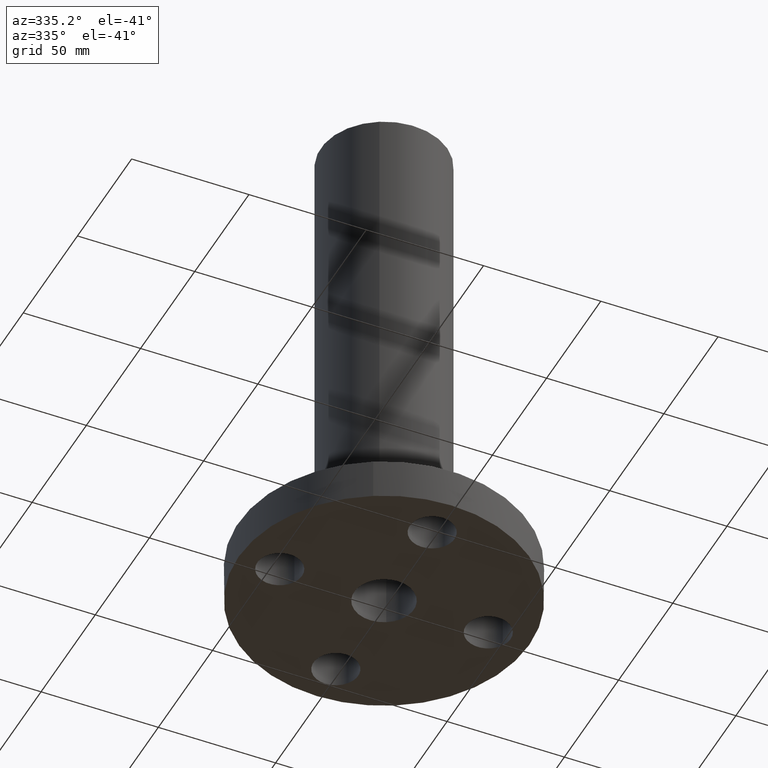
[diagram: clean part render]
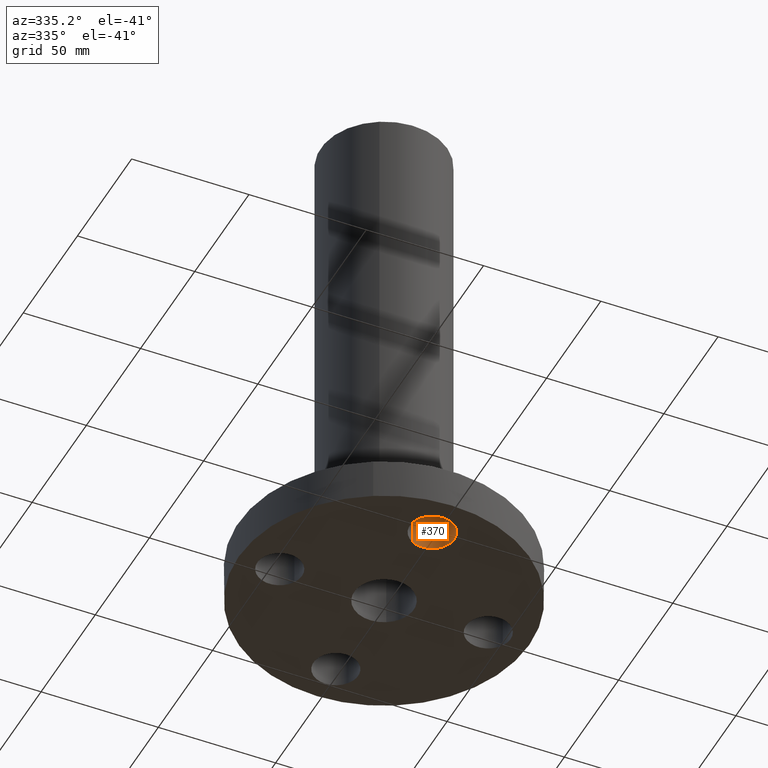
[diagram: same view with one face highlighted and labeled with its STEP entity id]
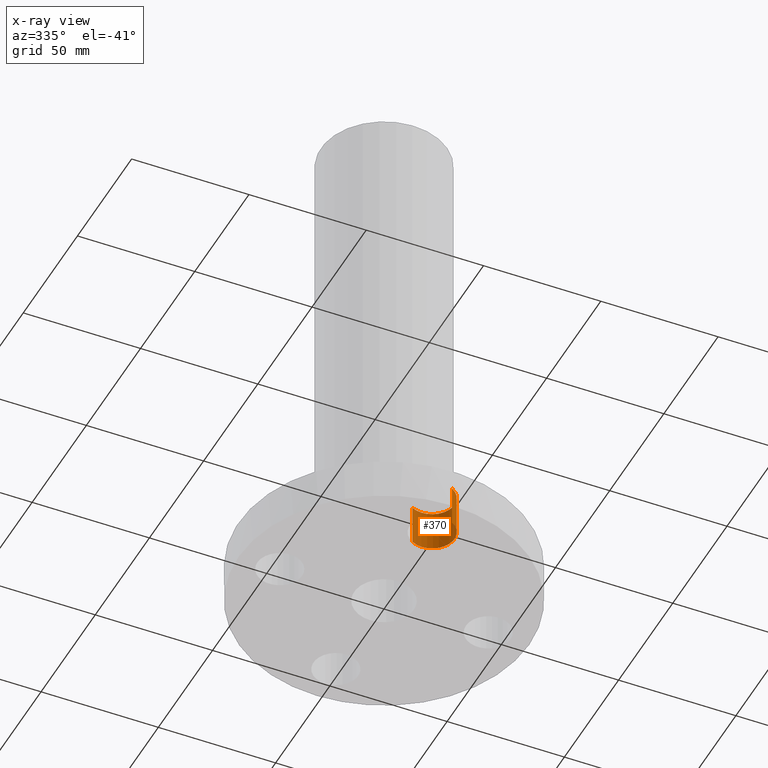
[diagram: x-ray of the same camera — body ghosted, the highlighted face saturated]
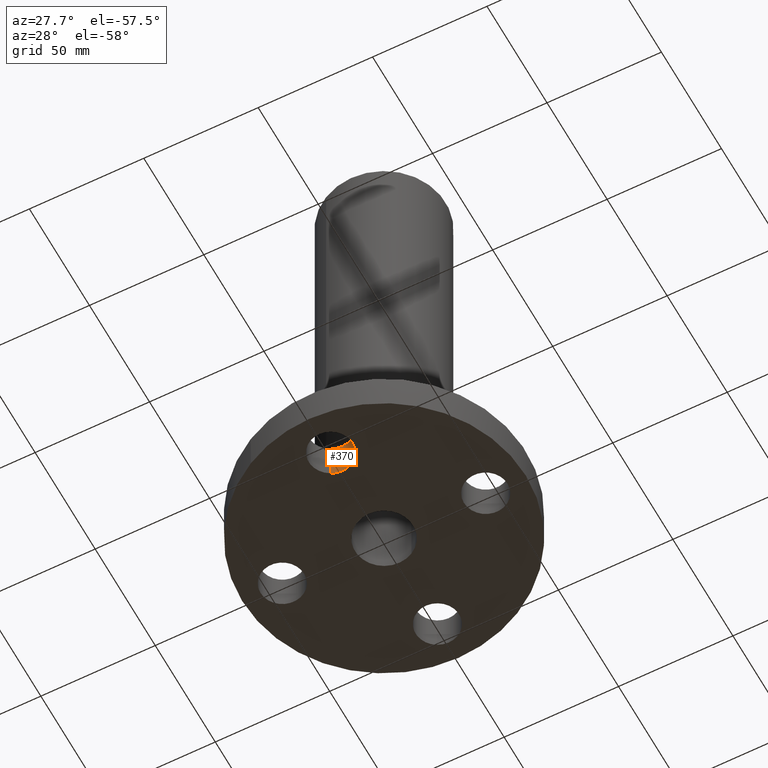
[diagram: same view with one face highlighted and labeled with its STEP entity id]
A machine part, auxiliary view. The second image highlights one B-rep face of the part: STEP entity #370.
The next image is the same camera in x-ray: the body ghosted, the highlighted face saturated — about 0% of this face is hidden behind the body in this view.
A second angle (auxiliary view) of the same face is appended — the face is thin or edge-on in the first view.
In plain terms, the highlighted cylindrical surface (edge-blend (fillet) strip) has radius 9.525 mm, axis along (-0, 0, 1).
Its self-contained STEP definition (entity closure, byte-faithful):
#139=AXIS2_PLACEMENT_3D('Circle Axis2P3D',#137,#138,$) ;
#331=AXIS2_PLACEMENT_3D('Cylinder Axis2P3D',#328,#329,#330) ;
#361=AXIS2_PLACEMENT_3D('Circle Axis2P3D',#359,#360,$) ;
#137=CARTESIAN_POINT('Axis2P3D Location',(2.79741234551E-016,-1.75000000001,0.690000000003)) ;
#141=CARTESIAN_POINT('Vertex',(-0.179784576977,-1.4209065393,0.690000000003)) ;
#143=CARTESIAN_POINT('Vertex',(0.179784576977,-2.07909346072,0.690000000003)) ;
#328=CARTESIAN_POINT('Axis2P3D Location',(1.07156594926E-016,-1.75000000001,0.00393700787402)) ;
#333=CARTESIAN_POINT('Line Origine',(-0.179784576977,-1.4209065393,0.345000000001)) ;
#337=CARTESIAN_POINT('Vertex',(-0.179784576977,-1.4209065393,2.2401153548E-016)) ;
#340=CARTESIAN_POINT('Line Origine',(0.179784576977,-2.07909346072,0.345000000001)) ;
#344=CARTESIAN_POINT('Vertex',(0.179784576977,-2.07909346072,2.2401153548E-016)) ;
#359=CARTESIAN_POINT('Axis2P3D Location',(1.07156594926E-016,-1.75000000001,0.)) ;
#138=DIRECTION('Axis2P3D Direction',(0.,0.,-0.0393700787402)) ;
#329=DIRECTION('Axis2P3D Direction',(-0.,0.,0.0393700787402)) ;
#330=DIRECTION('Axis2P3D XDirection',(0.0188750212049,-0.0345504945626,0.)) ;
#334=DIRECTION('Vector Direction',(0.,0.,0.0393700787402)) ;
#341=DIRECTION('Vector Direction',(0.,0.,0.0393700787402)) ;
#360=DIRECTION('Axis2P3D Direction',(-0.,0.,0.0393700787402)) ;
#335=VECTOR('Line Direction',#334,0.0393700787402) ;
#342=VECTOR('Line Direction',#341,0.0393700787402) ;
#365=ORIENTED_EDGE('',*,*,#346,.F.) ;
#366=ORIENTED_EDGE('',*,*,#145,.F.) ;
#367=ORIENTED_EDGE('',*,*,#339,.T.) ;
#368=ORIENTED_EDGE('',*,*,#363,.T.) ;
#370=ADVANCED_FACE('PartBody',(#369),#332,.F.) ;
#140=CIRCLE('generated circle',#139,0.375000000001) ;
#362=CIRCLE('generated circle',#361,0.375000000001) ;
#332=CYLINDRICAL_SURFACE('generated cylinder',#331,0.375000000001) ;
#145=EDGE_CURVE('',#142,#144,#140,.T.) ;
#339=EDGE_CURVE('',#142,#338,#336,.F.) ;
#346=EDGE_CURVE('',#144,#345,#343,.F.) ;
#363=EDGE_CURVE('',#338,#345,#362,.F.) ;
#364=EDGE_LOOP('',(#365,#366,#367,#368)) ;
#369=FACE_OUTER_BOUND('',#364,.T.) ;
#336=LINE('Line',#333,#335) ;
#343=LINE('Line',#340,#342) ;
#142=VERTEX_POINT('',#141) ;
#144=VERTEX_POINT('',#143) ;
#338=VERTEX_POINT('',#337) ;
#345=VERTEX_POINT('',#344) ;